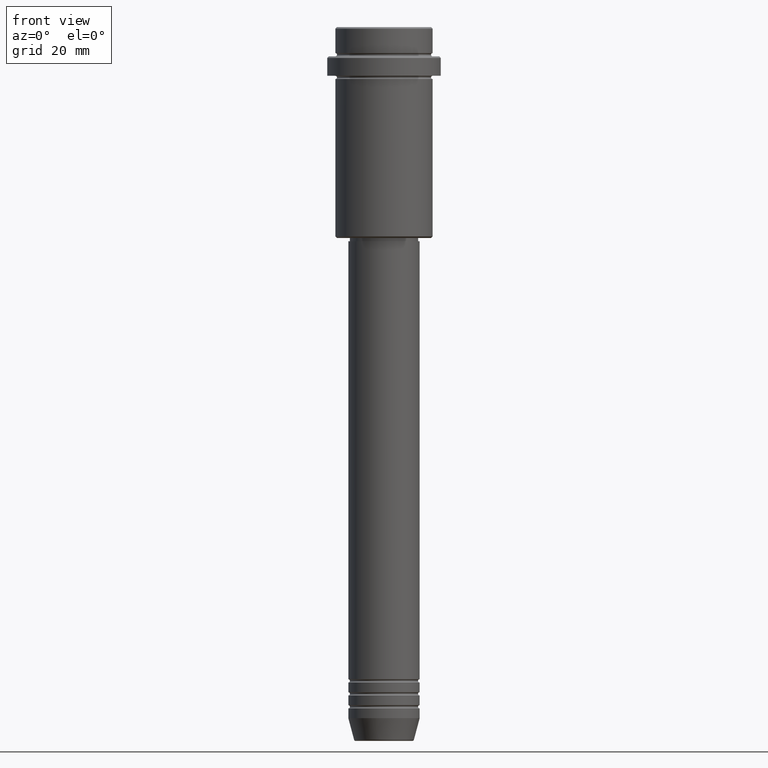
[diagram: clean part render]
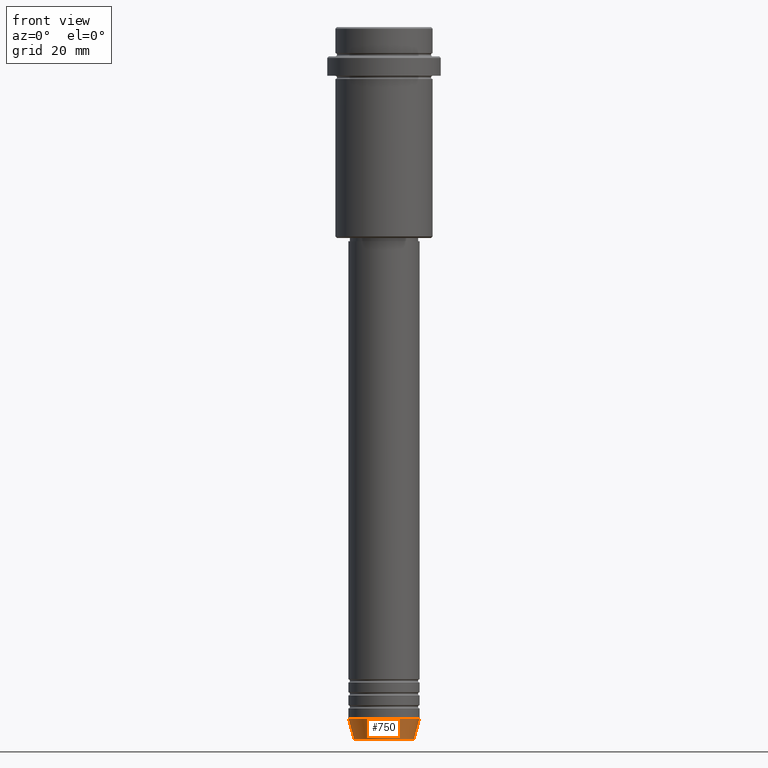
[diagram: same view with one face highlighted and labeled with its STEP entity id]
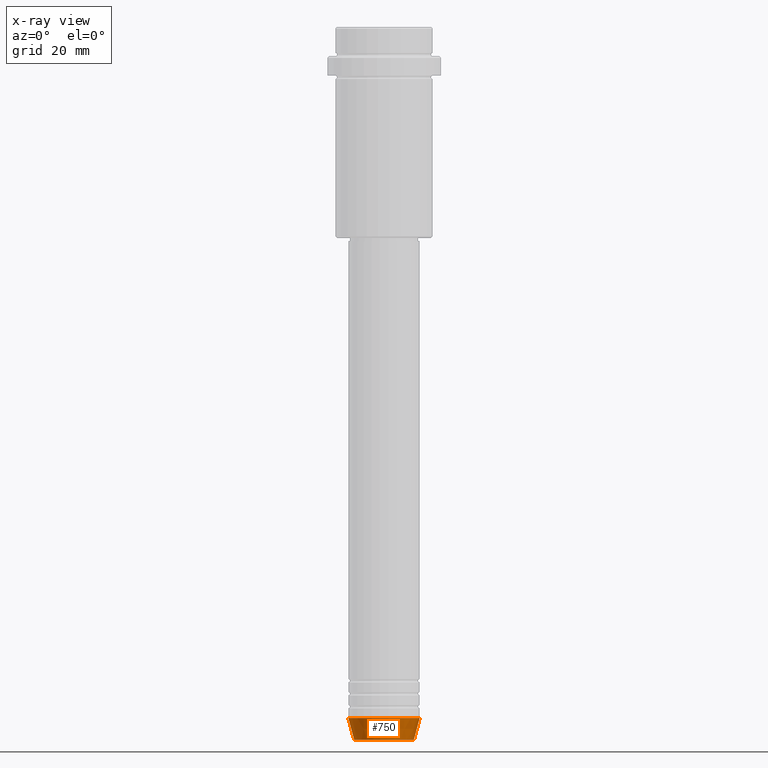
[diagram: x-ray of the same camera — body ghosted, the highlighted face saturated]
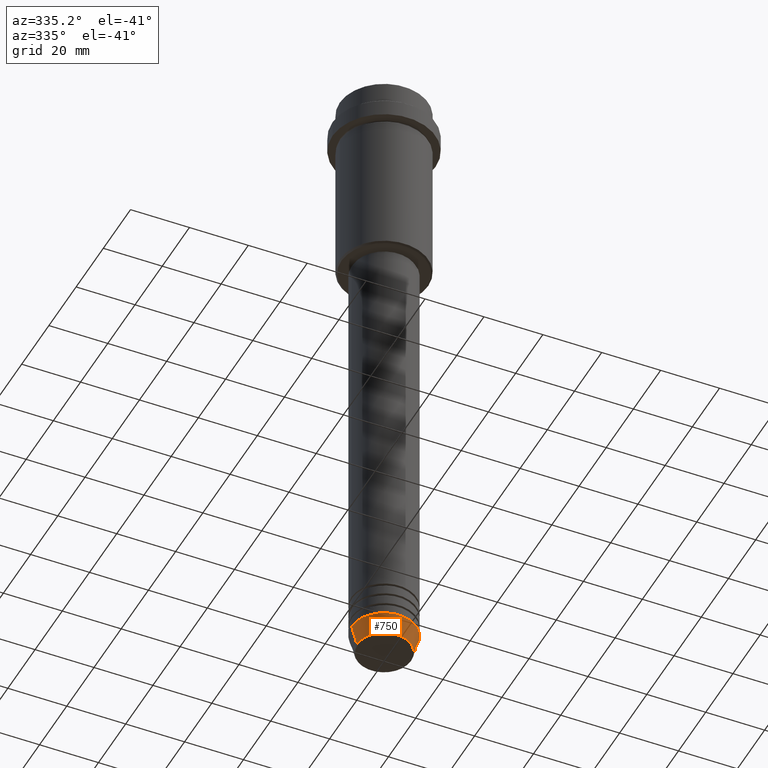
[diagram: same view with one face highlighted and labeled with its STEP entity id]
A machine part, front view. The second image highlights one B-rep face of the part: STEP entity #750.
The next image is the same camera in x-ray: the body ghosted, the highlighted face saturated — about 0% of this face is hidden behind the body in this view.
A second angle (auxiliary view) of the same face is appended — the face is thin or edge-on in the first view.
In plain terms, the highlighted conical surface has half-angle 15 deg.
Its self-contained STEP definition (entity closure, byte-faithful):
#10 = CARTESIAN_POINT ( 'NONE',  ( -9.223655072137201927, 1.238341722557647793E-15, -219.6294095225512706 ) ) ;
#27 = DIRECTION ( 'NONE',  ( 1.000000000000000000, 0.000000000000000000, 0.000000000000000000 ) ) ;
#74 = VERTEX_POINT ( 'NONE', #10 ) ;
#84 = VECTOR ( 'NONE', #648, 1000.000000000000114 ) ;
#91 = ORIENTED_EDGE ( 'NONE', *, *, #1344, .T. ) ;
#117 = VERTEX_POINT ( 'NONE', #592 ) ;
#163 = EDGE_LOOP ( 'NONE', ( #507, #91, #1172, #1335 ) ) ;
#270 = DIRECTION ( 'NONE',  ( -0.000000000000000000, -0.000000000000000000, 1.000000000000000000 ) ) ;
#287 = CARTESIAN_POINT ( 'NONE',  ( 0.000000000000000000, 0.000000000000000000, -219.6294095225512706 ) ) ;
#415 = VECTOR ( 'NONE', #935, 1000.000000000000114 ) ;
#507 = ORIENTED_EDGE ( 'NONE', *, *, #683, .F. ) ;
#509 = CARTESIAN_POINT ( 'NONE',  ( -11.00000000000000000, 1.347111479062088405E-15, -213.0000000000000284 ) ) ;
#547 = CIRCLE ( 'NONE', #976, 9.223655072137201927 ) ;
#561 = FACE_OUTER_BOUND ( 'NONE', #163, .T. ) ;
#592 = CARTESIAN_POINT ( 'NONE',  ( 9.223655072137201927, 0.000000000000000000, -219.6294095225512706 ) ) ;
#623 = AXIS2_PLACEMENT_3D ( 'NONE', #681, #1001, #27 ) ;
#648 = DIRECTION ( 'NONE',  ( 0.2588190451025205174, 0.000000000000000000, 0.9659258262890684232 ) ) ;
#653 = LINE ( 'NONE', #1292, #84 ) ;
#681 = CARTESIAN_POINT ( 'NONE',  ( 0.000000000000000000, 0.000000000000000000, -213.0000000000000284 ) ) ;
#683 = EDGE_CURVE ( 'NONE', #74, #786, #927, .T. ) ;
#718 = VERTEX_POINT ( 'NONE', #1230 ) ;
#750 = ADVANCED_FACE ( 'NONE', ( #561 ), #1223, .T. ) ;
#781 = CARTESIAN_POINT ( 'NONE',  ( -11.00000000000000000, 1.347111479062088405E-15, -213.0000000000000284 ) ) ;
#786 = VERTEX_POINT ( 'NONE', #781 ) ;
#830 = DIRECTION ( 'NONE',  ( 1.000000000000000000, 0.000000000000000000, 0.000000000000000000 ) ) ;
#927 = LINE ( 'NONE', #509, #415 ) ;
#932 = CARTESIAN_POINT ( 'NONE',  ( 0.000000000000000000, 0.000000000000000000, -213.0000000000000284 ) ) ;
#935 = DIRECTION ( 'NONE',  ( -0.2588190451025205174, 3.169619151431761243E-17, 0.9659258262890684232 ) ) ;
#951 = EDGE_CURVE ( 'NONE', #786, #718, #975, .T. ) ;
#975 = CIRCLE ( 'NONE', #1017, 11.00000000000000000 ) ;
#976 = AXIS2_PLACEMENT_3D ( 'NONE', #287, #1343, #1016 ) ;
#1001 = DIRECTION ( 'NONE',  ( -0.000000000000000000, -0.000000000000000000, 1.000000000000000000 ) ) ;
#1016 = DIRECTION ( 'NONE',  ( 1.000000000000000000, 0.000000000000000000, 0.000000000000000000 ) ) ;
#1017 = AXIS2_PLACEMENT_3D ( 'NONE', #932, #270, #830 ) ;
#1061 = EDGE_CURVE ( 'NONE', #117, #718, #653, .T. ) ;
#1172 = ORIENTED_EDGE ( 'NONE', *, *, #1061, .T. ) ;
#1223 = CONICAL_SURFACE ( 'NONE', #623, 11.00000000000000000, 0.2617993877991491303 ) ;
#1230 = CARTESIAN_POINT ( 'NONE',  ( 11.00000000000000000, 0.000000000000000000, -213.0000000000000284 ) ) ;
#1292 = CARTESIAN_POINT ( 'NONE',  ( 11.00000000000000000, 0.000000000000000000, -213.0000000000000284 ) ) ;
#1335 = ORIENTED_EDGE ( 'NONE', *, *, #951, .F. ) ;
#1343 = DIRECTION ( 'NONE',  ( -0.000000000000000000, -0.000000000000000000, 1.000000000000000000 ) ) ;
#1344 = EDGE_CURVE ( 'NONE', #74, #117, #547, .T. ) ;